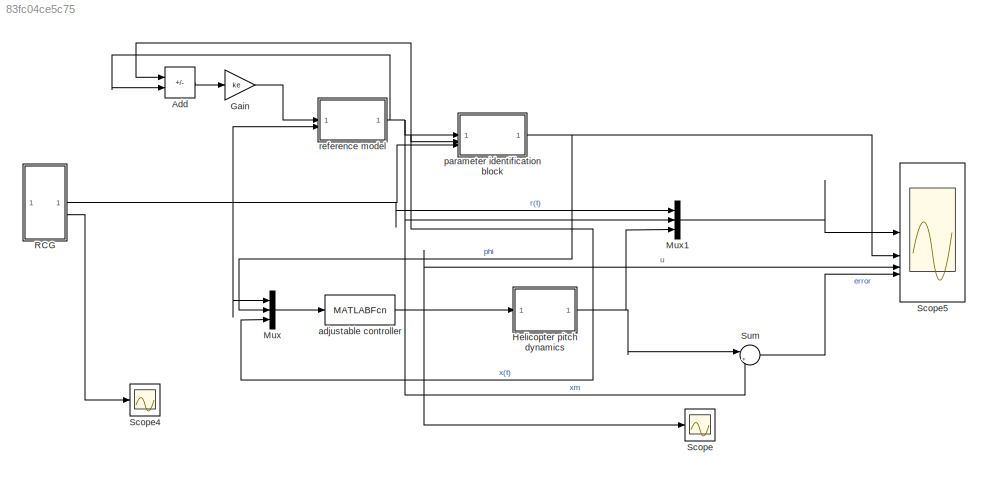
MODEL slx_83fc04ce5c75
KIND model
CONFIG AbsTol = auto
CONFIG EnableMultiTasking = on
CONFIG FixedStep = auto
CONFIG MaxStep = auto
CONFIG MinStep = auto
CONFIG RelTol = 1e-3
CONFIG SampleTimeConstraint = Unconstrained
CONFIG SolverName = ode45
CONFIG StartTime = 0.0
CONFIG StopTime = 100
BLOCK [Sum] Add
  IconShape = rectangular
  Inputs = +-
BLOCK [Gain] Gain
  Gain = ke
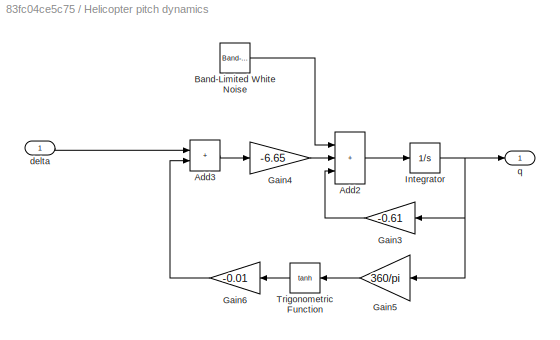
BLOCK [SubSystem] Helicopter pitch dynamics
BLOCK [Sum] Helicopter pitch dynamics/Add2
  IconShape = rectangular
  Inputs = +++
BLOCK [Sum] Helicopter pitch dynamics/Add3
  IconShape = rectangular
BLOCK [Reference] Helicopter pitch dynamics/Band-Limited White Noise  REF=simulink/Sources/Band-Limited
White Noise
  SourceBlock = simulink/Sources/Band-Limited\nWhite Noise
  SourceType = Band-Limited White Noise.
BLOCK [Gain] Helicopter pitch dynamics/Gain3
  Gain = -0.61
  NameLocation = top
BLOCK [Gain] Helicopter pitch dynamics/Gain4
  Gain = -6.65
BLOCK [Gain] Helicopter pitch dynamics/Gain5
  Gain = 360/pi
  NameLocation = top
BLOCK [Gain] Helicopter pitch dynamics/Gain6
  Gain = -0.01
  NameLocation = top
BLOCK [Integrator] Helicopter pitch dynamics/Integrator
BLOCK [Trigonometry] Helicopter pitch dynamics/Trigonometric Function
  NameLocation = top
  Operator = tanh
BLOCK [Inport] Helicopter pitch dynamics/delta
BLOCK [Outport] Helicopter pitch dynamics/q
BLOCK [Mux] Mux
  DisplayOption = bar
  Inputs = [1 3 1]
BLOCK [Mux] Mux1
  DisplayOption = bar
  Inputs = 3
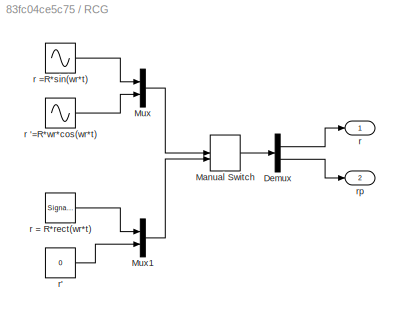
BLOCK [SubSystem] RCG
BLOCK [Demux] RCG/Demux
  Outputs = 2
BLOCK [ManualSwitch] RCG/Manual Switch
BLOCK [Mux] RCG/Mux
  DisplayOption = bar
  Inputs = 2
BLOCK [Mux] RCG/Mux1
  DisplayOption = bar
  Inputs = 2
BLOCK [Outport] RCG/r
BLOCK [Sin] RCG/r '=R*wr*cos(wr*t)
  Amplitude = R*wr
  Frequency = wr
  Phase = pi/2
  SampleTime = Tc
BLOCK [SignalGenerator] RCG/r = R*rect(wr*t)
  Amplitude = R
  Frequency = wr
  Units = rad/sec
  WaveForm = square
BLOCK [Sin] RCG/r =R*sin(wr*t)
  Amplitude = R
  Frequency = wr
  SampleTime = Tc
BLOCK [Constant] RCG/r'
  Value = 0
BLOCK [Outport] RCG/rp
  Port = 2
BLOCK [Scope] Scope
  Floating = off
  NumInputPorts = 1
  ScopeSpecificationString = Simulink.scopes.TimeScopeBlockCfg('CurrentConfiguration', extmgr.ConfigurationSet(extmgr.Configuration('Core','General UI',true),extmgr.Configuration('Core','Source UI',true),extmgr.Configuration('Sources','WiredSimulink',true),extmgr.Configuration('Visuals','Time Domain',true,'SerializedDisplays',{struct('MinYLimReal','-0.01635','MaxYLimReal','0.0163','YLabelReal','','MinYLimMag','0.00000','MaxYL...<+1365ch>
BLOCK [Scope] Scope4
  Floating = off
  NumInputPorts = 1
  ScopeSpecificationString = Simulink.scopes.TimeScopeBlockCfg('CurrentConfiguration', extmgr.ConfigurationSet(extmgr.Configuration('Core','General UI',true),extmgr.Configuration('Core','Source UI',true),extmgr.Configuration('Sources','WiredSimulink',true,'DataLoggingVariableName','ScopeData3'),extmgr.Configuration('Visuals','Time Domain',true,'SerializedDisplays',{struct('MinYLimReal','-0.04687','MaxYLimReal','0.04687','YLab...<+1364ch>
BLOCK [Scope] Scope5
  Floating = off
  NumInputPorts = 4
  ScopeSpecificationString = Simulink.scopes.TimeScopeBlockCfg('CurrentConfiguration', extmgr.ConfigurationSet(extmgr.Configuration('Core','General UI',true,'FigureColor',[1 1 1]),extmgr.Configuration('Core','Source UI',true),extmgr.Configuration('Sources','WiredSimulink',true,'DataLoggingVariableName','ScopeData1'),extmgr.Configuration('Visuals','Time Domain',true,'SerializedDisplays',{struct('MinYLimReal','-0.1875','MaxYLim...<+4761ch>
BLOCK [Sum] Sum
  Inputs = |+-
BLOCK [MATLABFcn] adjustable controller 
  MATLABFcn = Mraccontroller
  OutputDimensions = 1
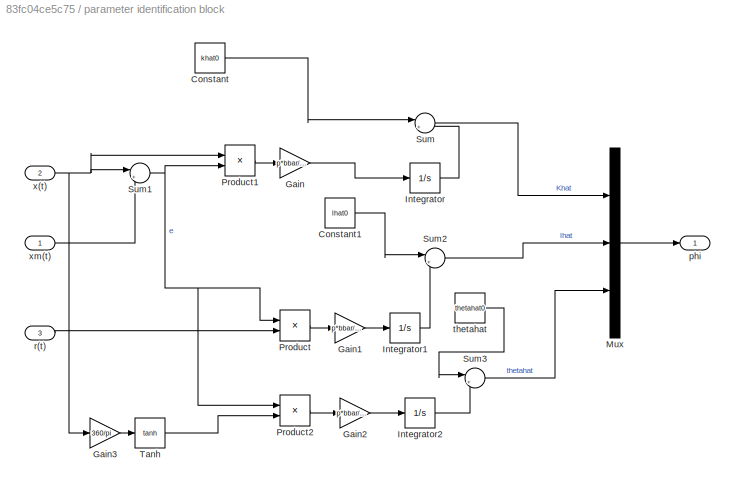
BLOCK [SubSystem] parameter identification block 
BLOCK [Constant] parameter identification block /Constant
  Value = khat0
BLOCK [Constant] parameter identification block /Constant1
  Value = lhat0
BLOCK [Gain] parameter identification block /Gain
  Gain = p*bbar/gammax
BLOCK [Gain] parameter identification block /Gain1
  Gain = p*bbar/gammar
BLOCK [Gain] parameter identification block /Gain2
  Gain = p*bbar/gammaphi
BLOCK [Gain] parameter identification block /Gain3
  Gain = 360/pi
BLOCK [Integrator] parameter identification block /Integrator
BLOCK [Integrator] parameter identification block /Integrator1
BLOCK [Integrator] parameter identification block /Integrator2
BLOCK [Mux] parameter identification block /Mux
  DisplayOption = bar
  Inputs = 3
BLOCK [Product] parameter identification block /Product
BLOCK [Product] parameter identification block /Product1
BLOCK [Product] parameter identification block /Product2
BLOCK [Sum] parameter identification block /Sum
  Inputs = |+-
BLOCK [Sum] parameter identification block /Sum1
  Inputs = |+-
BLOCK [Sum] parameter identification block /Sum2
  Inputs = |+-
BLOCK [Sum] parameter identification block /Sum3
  Inputs = |++
BLOCK [Trigonometry] parameter identification block /Tanh
  Operator = tanh
BLOCK [Outport] parameter identification block /phi
BLOCK [Inport] parameter identification block /r(t)
  Port = 3
BLOCK [Constant] parameter identification block /thetahat
  Value = thetahat0
BLOCK [Inport] parameter identification block /x(t)
  Port = 2
BLOCK [Inport] parameter identification block /xm(t)
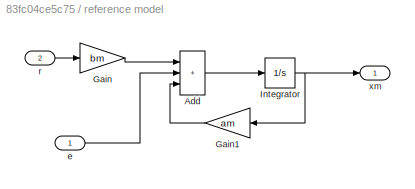
BLOCK [SubSystem] reference model
BLOCK [Sum] reference model/Add
  IconShape = rectangular
  Inputs = +++
BLOCK [Gain] reference model/Gain
  Gain = bm
BLOCK [Gain] reference model/Gain1
  Gain = am
  NameLocation = top
BLOCK [Integrator] reference model/Integrator
BLOCK [Inport] reference model/e
BLOCK [Inport] reference model/r
  Port = 2
BLOCK [Outport] reference model/xm
LINE Add:1 -> Gain:1
LINE Gain:1 -> reference model:1
LINE Helicopter pitch dynamics/Add2:1 -> Helicopter pitch dynamics/Integrator:1
LINE Helicopter pitch dynamics/Add3:1 -> Helicopter pitch dynamics/Gain4:1
LINE Helicopter pitch dynamics/Band-Limited White Noise:1 -> Helicopter pitch dynamics/Add2:1
LINE Helicopter pitch dynamics/Gain3:1 -> Helicopter pitch dynamics/Add2:3
LINE Helicopter pitch dynamics/Gain4:1 -> Helicopter pitch dynamics/Add2:2
LINE Helicopter pitch dynamics/Gain5:1 -> Helicopter pitch dynamics/Trigonometric Function:1
LINE Helicopter pitch dynamics/Gain6:1 -> Helicopter pitch dynamics/Add3:2
NET Helicopter pitch dynamics/Integrator:1 -> Helicopter pitch dynamics/Gain3:1, Helicopter pitch dynamics/Gain5:1, Helicopter pitch dynamics/q:1
LINE Helicopter pitch dynamics/Trigonometric Function:1 -> Helicopter pitch dynamics/Gain6:1
LINE Helicopter pitch dynamics/delta:1 -> Helicopter pitch dynamics/Add3:1
NET Helicopter pitch dynamics:1 -> Add:1, Mux1:3, Mux:3, Sum:1, parameter identification block :2
LINE Mux1:1 -> Scope5:1
LINE Mux:1 -> adjustable controller :1
LINE RCG/Demux:1 -> RCG/r:1
LINE RCG/Demux:2 -> RCG/rp:1
LINE RCG/Manual Switch:1 -> RCG/Demux:1
LINE RCG/Mux1:1 -> RCG/Manual Switch:2
LINE RCG/Mux:1 -> RCG/Manual Switch:1
LINE RCG/r '=R*wr*cos(wr*t):1 -> RCG/Mux:2
LINE RCG/r = R*rect(wr*t):1 -> RCG/Mux1:1
LINE RCG/r =R*sin(wr*t):1 -> RCG/Mux:1
LINE RCG/r':1 -> RCG/Mux1:2
NET RCG:1 -> Mux1:1, Mux:1, parameter identification block :3, reference model:2
LINE RCG:2 -> Scope4:1
LINE Sum:1 -> Scope5:4
NET adjustable controller :1 -> Helicopter pitch dynamics:1, Scope5:3, Scope:1
LINE parameter identification block /Constant1:1 -> parameter identification block /Sum2:1
LINE parameter identification block /Constant:1 -> parameter identification block /Sum:1
LINE parameter identification block /Gain1:1 -> parameter identification block /Integrator1:1
LINE parameter identification block /Gain2:1 -> parameter identification block /Integrator2:1
LINE parameter identification block /Gain3:1 -> parameter identification block /Tanh:1
LINE parameter identification block /Gain:1 -> parameter identification block /Integrator:1
LINE parameter identification block /Integrator1:1 -> parameter identification block /Sum2:2
LINE parameter identification block /Integrator2:1 -> parameter identification block /Sum3:2
LINE parameter identification block /Integrator:1 -> parameter identification block /Sum:2
LINE parameter identification block /Mux:1 -> parameter identification block /phi:1
LINE parameter identification block /Product1:1 -> parameter identification block /Gain:1
LINE parameter identification block /Product2:1 -> parameter identification block /Gain2:1
LINE parameter identification block /Product:1 -> parameter identification block /Gain1:1
NET parameter identification block /Sum1:1 -> parameter identification block /Product1:2, parameter identification block /Product2:1, parameter identification block /Product:1
LINE parameter identification block /Sum2:1 -> parameter identification block /Mux:2
LINE parameter identification block /Sum3:1 -> parameter identification block /Mux:3
LINE parameter identification block /Sum:1 -> parameter identification block /Mux:1
LINE parameter identification block /Tanh:1 -> parameter identification block /Product2:2
LINE parameter identification block /r(t):1 -> parameter identification block /Product:2
LINE parameter identification block /thetahat:1 -> parameter identification block /Sum3:1
NET parameter identification block /x(t):1 -> parameter identification block /Gain3:1, parameter identification block /Product1:1, parameter identification block /Sum1:1
LINE parameter identification block /xm(t):1 -> parameter identification block /Sum1:2
NET parameter identification block :1 -> Mux:2, Scope5:2
LINE reference model/Add:1 -> reference model/Integrator:1
LINE reference model/Gain1:1 -> reference model/Add:3
LINE reference model/Gain:1 -> reference model/Add:1
NET reference model/Integrator:1 -> reference model/Gain1:1, reference model/xm:1
LINE reference model/e:1 -> reference model/Add:2
LINE reference model/r:1 -> reference model/Gain:1
NET reference model:1 -> Add:2, Mux1:2, Sum:2, parameter identification block :1
note: NET lines group one-source signal fan-out (src -> all destinations, sorted); 1:1 wires keep LINE
